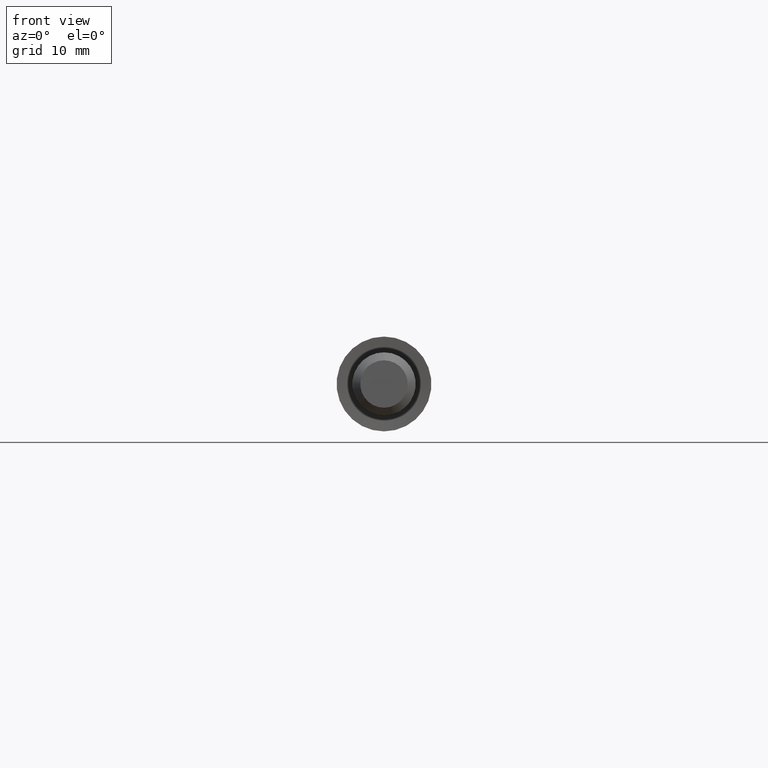
[diagram: clean part render]
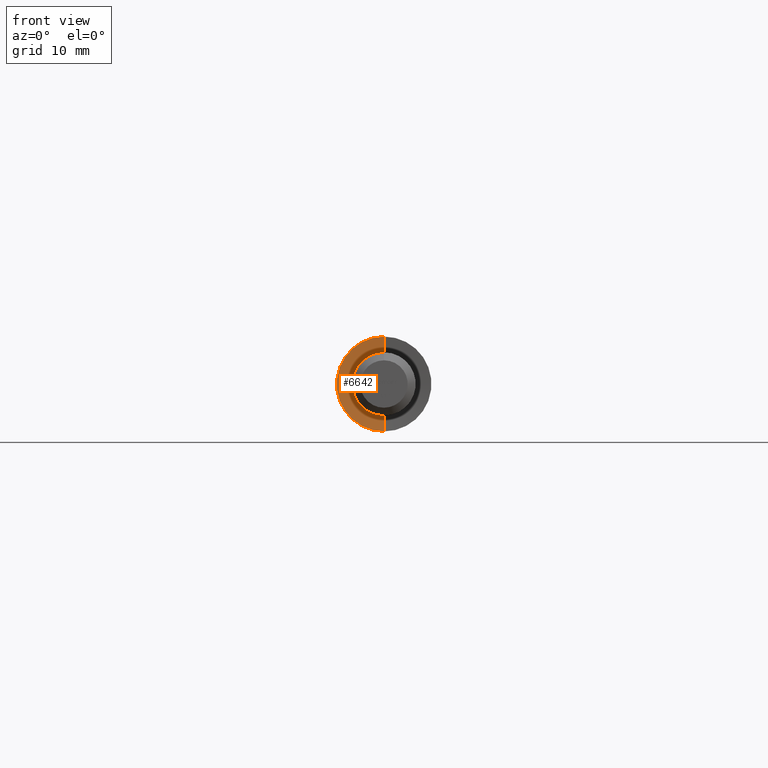
[diagram: same view with one face highlighted and labeled with its STEP entity id]
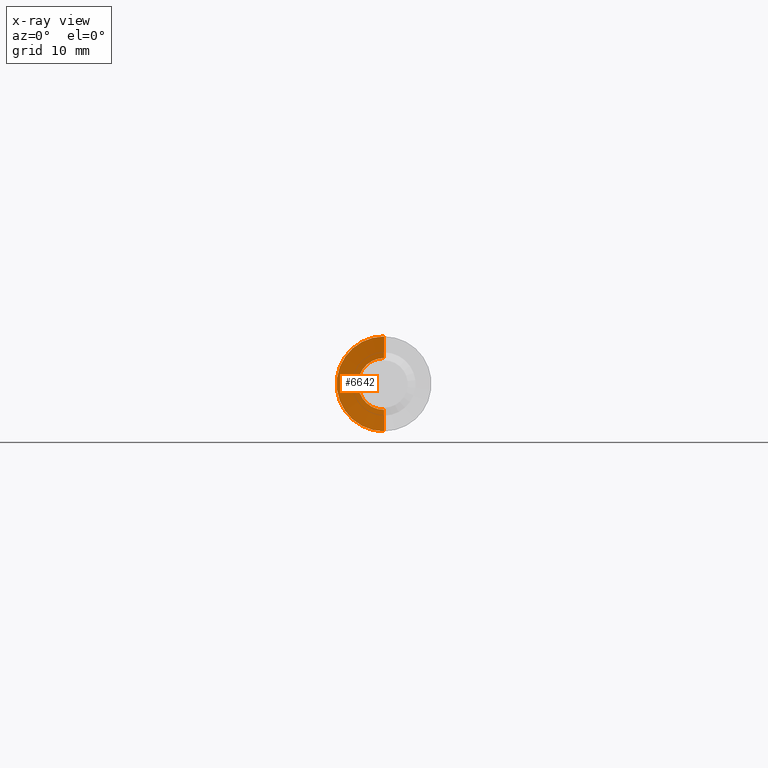
[diagram: x-ray of the same camera — body ghosted, the highlighted face saturated]
A machine part, front view. The second image highlights one B-rep face of the part: STEP entity #6642.
The next image is the same camera in x-ray: the body ghosted, the highlighted face saturated — about 0% of this face is hidden behind the body in this view.
In plain terms, the highlighted conical surface has half-angle 85 deg.
Its self-contained STEP definition (entity closure, byte-faithful):
#228 = CARTESIAN_POINT ( 'NONE',  ( 0.0000000000000000000, 0.2386875398333731200, 0.0000000000000000000 ) ) ;
#435 = DIRECTION ( 'NONE',  ( 1.219986648345620700E-016, -0.08715574274765171300, 0.9961946980917461000 ) ) ;
#498 = AXIS2_PLACEMENT_3D ( 'NONE', #11268, #11451, #13350 ) ;
#571 = VECTOR ( 'NONE', #435, 1000.000000000000000 ) ;
#618 = CARTESIAN_POINT ( 'NONE',  ( 4.006785847574704800E-016, 0.2386875398333731000, 3.271788935686913600 ) ) ;
#1368 = DIRECTION ( 'NONE',  ( -0.0000000000000000000, -1.000000000000000000, -0.0000000000000000000 ) ) ;
#1500 = FACE_OUTER_BOUND ( 'NONE', #8378, .T. ) ;
#1558 = AXIS2_PLACEMENT_3D ( 'NONE', #228, #1368, #12850 ) ;
#2779 = EDGE_CURVE ( 'NONE', #11954, #3184, #8245, .T. ) ;
#2876 = ORIENTED_EDGE ( 'NONE', *, *, #12350, .F. ) ;
#3111 = VECTOR ( 'NONE', #9415, 1000.000000000000000 ) ;
#3184 = VERTEX_POINT ( 'NONE', #3782 ) ;
#3205 = CARTESIAN_POINT ( 'NONE',  ( 0.0000000000000000000, 0.2386875398333731000, -3.271788935686913600 ) ) ;
#3325 = CIRCLE ( 'NONE', #498, 3.271788935686913200 ) ;
#3782 = CARTESIAN_POINT ( 'NONE',  ( 0.0000000000000000000, 4.038967834731580400E-025, -6.000000000000003600 ) ) ;
#4621 = CONICAL_SURFACE ( 'NONE', #1558, 3.271788935686913200, 1.483529864195186600 ) ;
#4723 = VERTEX_POINT ( 'NONE', #618 ) ;
#4930 = EDGE_CURVE ( 'NONE', #4723, #12764, #3325, .T. ) ;
#5922 = LINE ( 'NONE', #9270, #3111 ) ;
#6323 = DIRECTION ( 'NONE',  ( -0.0000000000000000000, -1.000000000000000000, -0.0000000000000000000 ) ) ;
#6642 = ADVANCED_FACE ( 'NONE', ( #1500 ), #4621, .F. ) ;
#6812 = ORIENTED_EDGE ( 'NONE', *, *, #2779, .T. ) ;
#7324 = CARTESIAN_POINT ( 'NONE',  ( 0.0000000000000000000, 4.038967834731580400E-025, 0.0000000000000000000 ) ) ;
#7431 = CARTESIAN_POINT ( 'NONE',  ( 7.347880794884122700E-016, 4.038967834731580400E-025, 6.000000000000003600 ) ) ;
#8245 = CIRCLE ( 'NONE', #10159, 6.000000000000000000 ) ;
#8378 = EDGE_LOOP ( 'NONE', ( #11454, #8467, #6812, #2876 ) ) ;
#8467 = ORIENTED_EDGE ( 'NONE', *, *, #9099, .T. ) ;
#9099 = EDGE_CURVE ( 'NONE', #4723, #11954, #10091, .T. ) ;
#9270 = CARTESIAN_POINT ( 'NONE',  ( 0.0000000000000000000, 0.2386875398333731200, -3.271788935686913200 ) ) ;
#9381 = DIRECTION ( 'NONE',  ( 0.0000000000000000000, 0.0000000000000000000, -1.000000000000000000 ) ) ;
#9415 = DIRECTION ( 'NONE',  ( 0.0000000000000000000, -0.08715574274765171300, -0.9961946980917461000 ) ) ;
#10091 = LINE ( 'NONE', #11004, #571 ) ;
#10159 = AXIS2_PLACEMENT_3D ( 'NONE', #7324, #6323, #9381 ) ;
#11004 = CARTESIAN_POINT ( 'NONE',  ( 4.006785847574703800E-016, 0.2386875398333731200, 3.271788935686913200 ) ) ;
#11268 = CARTESIAN_POINT ( 'NONE',  ( 0.0000000000000000000, 0.2386875398333731200, 0.0000000000000000000 ) ) ;
#11451 = DIRECTION ( 'NONE',  ( -0.0000000000000000000, -1.000000000000000000, -0.0000000000000000000 ) ) ;
#11454 = ORIENTED_EDGE ( 'NONE', *, *, #4930, .F. ) ;
#11954 = VERTEX_POINT ( 'NONE', #7431 ) ;
#12350 = EDGE_CURVE ( 'NONE', #12764, #3184, #5922, .T. ) ;
#12764 = VERTEX_POINT ( 'NONE', #3205 ) ;
#12850 = DIRECTION ( 'NONE',  ( 0.0000000000000000000, 0.0000000000000000000, -1.000000000000000000 ) ) ;
#13350 = DIRECTION ( 'NONE',  ( 0.0000000000000000000, 0.0000000000000000000, -1.000000000000000000 ) ) ;